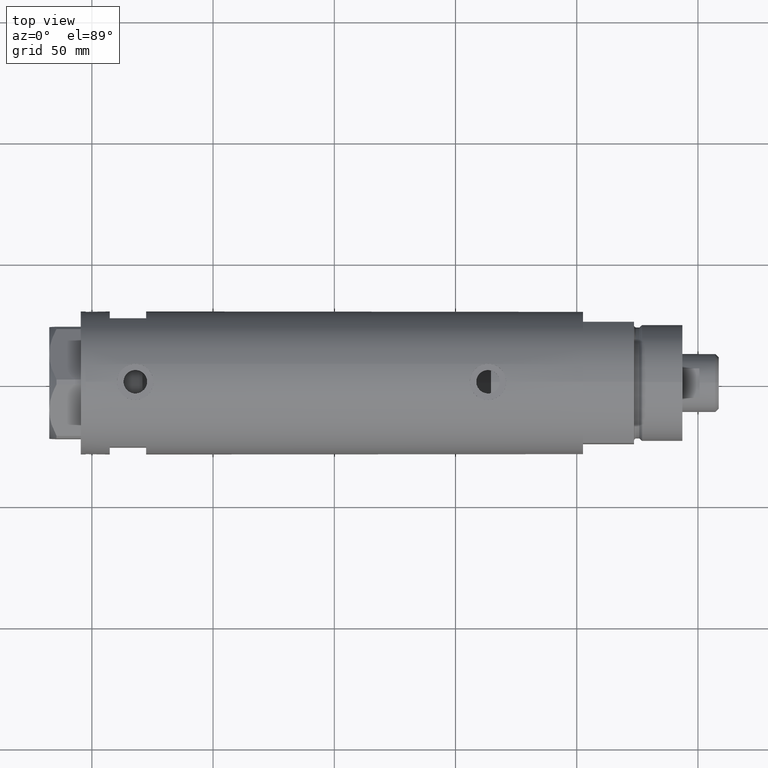
[diagram: clean part render]
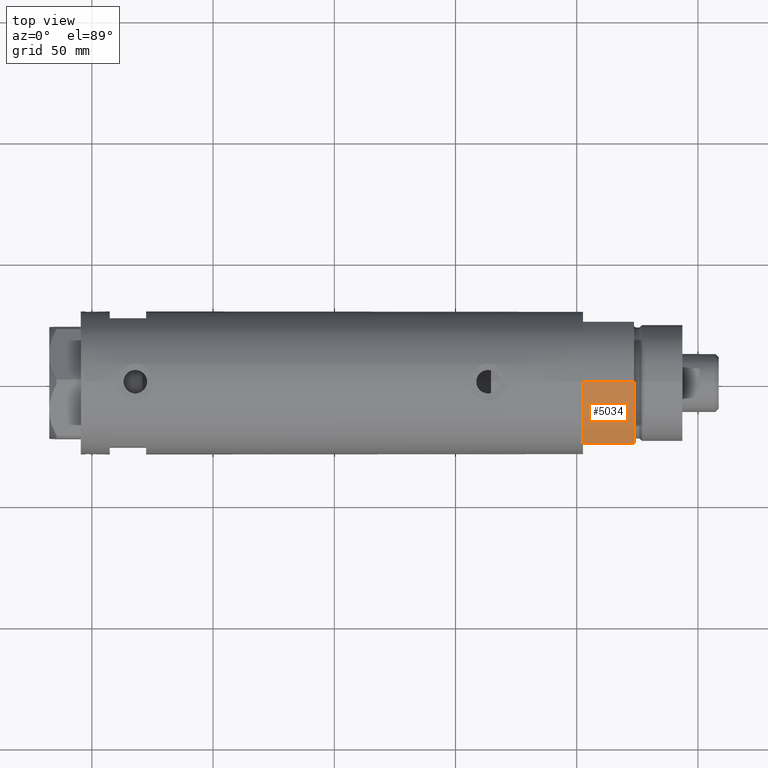
[diagram: same view with one face highlighted and labeled with its STEP entity id]
A machine part, top view. The second image highlights one B-rep face of the part: STEP entity #5034.
In plain terms, the highlighted cylindrical surface (partial cylindrical patch) has radius 29.5 mm, axis along (-1, -0, 0).
Its self-contained STEP definition (entity closure, byte-faithful):
#244 = EDGE_CURVE ( 'NONE', #2592, #3403, #3736, .T. ) ;
#945 = DIRECTION ( 'NONE',  ( 0.000000000000000000, 0.000000000000000000, 1.000000000000000000 ) ) ;
#954 = ORIENTED_EDGE ( 'NONE', *, *, #1766, .F. ) ;
#1073 = AXIS2_PLACEMENT_3D ( 'NONE', #4246, #1429, #1898 ) ;
#1294 = EDGE_CURVE ( 'NONE', #1405, #3422, #1492, .T. ) ;
#1335 = VECTOR ( 'NONE', #3199, 1000.000000000000000 ) ;
#1342 = CARTESIAN_POINT ( 'NONE',  ( 0.000000000000000000, 0.000000000000000000, 21.00000000000000000 ) ) ;
#1405 = VERTEX_POINT ( 'NONE', #3707 ) ;
#1429 = DIRECTION ( 'NONE',  ( 0.000000000000000000, 0.000000000000000000, 1.000000000000000000 ) ) ;
#1462 = CARTESIAN_POINT ( 'NONE',  ( -15.66045976336583045, -24.99999999999999645, 20.99999999999999645 ) ) ;
#1464 = CARTESIAN_POINT ( 'NONE',  ( 0.000000000000000000, 0.000000000000000000, 21.00000000000000000 ) ) ;
#1492 = LINE ( 'NONE', #1521, #4468 ) ;
#1521 = CARTESIAN_POINT ( 'NONE',  ( -29.50000000000000355, 0.000000000000000000, 21.00000000000000000 ) ) ;
#1676 = CARTESIAN_POINT ( 'NONE',  ( -15.66045976336582690, -25.00000000000000000, 0.000000000000000000 ) ) ;
#1766 = EDGE_CURVE ( 'NONE', #1405, #3403, #5253, .T. ) ;
#1898 = DIRECTION ( 'NONE',  ( 1.000000000000000000, 0.000000000000000000, 0.000000000000000000 ) ) ;
#2118 = ORIENTED_EDGE ( 'NONE', *, *, #244, .T. ) ;
#2508 = ORIENTED_EDGE ( 'NONE', *, *, #1294, .T. ) ;
#2592 = VERTEX_POINT ( 'NONE', #1676 ) ;
#2690 = EDGE_LOOP ( 'NONE', ( #954, #2508, #5504, #2118 ) ) ;
#2816 = DIRECTION ( 'NONE',  ( -0.000000000000000000, -0.000000000000000000, -1.000000000000000000 ) ) ;
#2848 = FACE_OUTER_BOUND ( 'NONE', #2690, .T. ) ;
#2950 = AXIS2_PLACEMENT_3D ( 'NONE', #1342, #945, #3083 ) ;
#3083 = DIRECTION ( 'NONE',  ( 1.000000000000000000, 0.000000000000000000, 0.000000000000000000 ) ) ;
#3199 = DIRECTION ( 'NONE',  ( -0.000000000000000000, -0.000000000000000000, 1.000000000000000000 ) ) ;
#3403 = VERTEX_POINT ( 'NONE', #1462 ) ;
#3422 = VERTEX_POINT ( 'NONE', #5213 ) ;
#3707 = CARTESIAN_POINT ( 'NONE',  ( -29.50000000000000355, 0.000000000000000000, 21.00000000000000000 ) ) ;
#3736 = LINE ( 'NONE', #5522, #1335 ) ;
#4097 = AXIS2_PLACEMENT_3D ( 'NONE', #1464, #2816, #4632 ) ;
#4246 = CARTESIAN_POINT ( 'NONE',  ( 0.000000000000000000, 0.000000000000000000, 0.000000000000000000 ) ) ;
#4468 = VECTOR ( 'NONE', #5073, 1000.000000000000000 ) ;
#4632 = DIRECTION ( 'NONE',  ( -1.000000000000000000, 0.000000000000000000, 0.000000000000000000 ) ) ;
#4666 = CYLINDRICAL_SURFACE ( 'NONE', #4097, 29.50000000000000355 ) ;
#5007 = EDGE_CURVE ( 'NONE', #3422, #2592, #5746, .T. ) ;
#5034 = ADVANCED_FACE ( 'NONE', ( #2848 ), #4666, .T. ) ;
#5073 = DIRECTION ( 'NONE',  ( -0.000000000000000000, -0.000000000000000000, -1.000000000000000000 ) ) ;
#5213 = CARTESIAN_POINT ( 'NONE',  ( -29.50000000000000355, 0.000000000000000000, 0.000000000000000000 ) ) ;
#5253 = CIRCLE ( 'NONE', #2950, 29.50000000000000355 ) ;
#5504 = ORIENTED_EDGE ( 'NONE', *, *, #5007, .T. ) ;
#5522 = CARTESIAN_POINT ( 'NONE',  ( -15.66045976336583401, -25.00000000000000000, 0.000000000000000000 ) ) ;
#5746 = CIRCLE ( 'NONE', #1073, 29.50000000000000355 ) ;